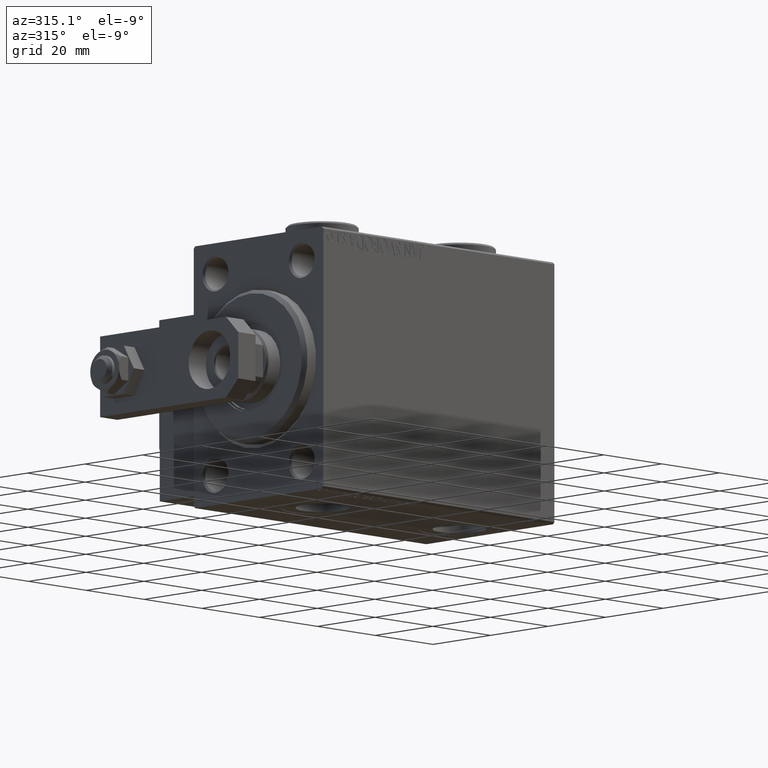
[diagram: clean part render]
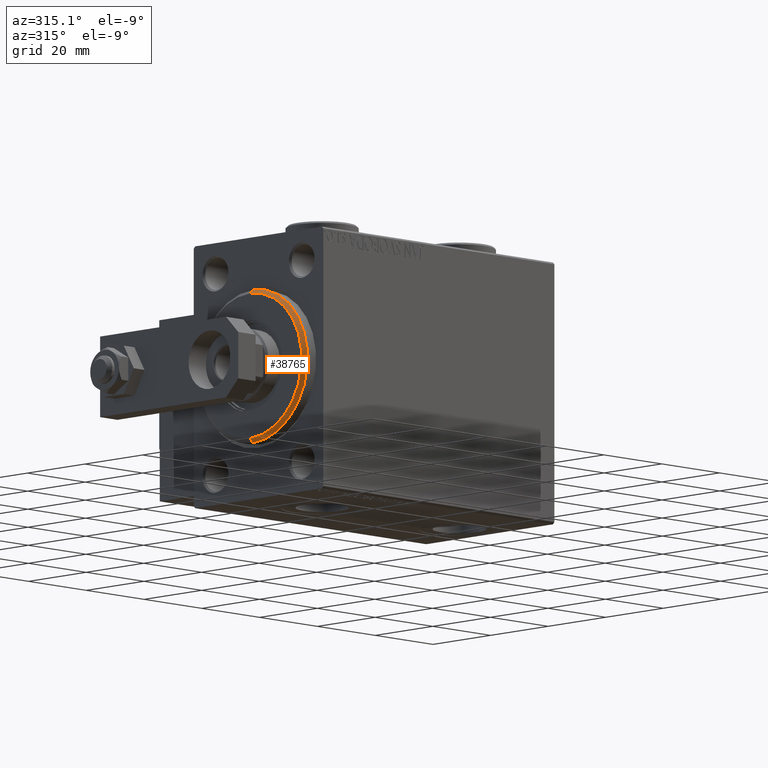
[diagram: same view with one face highlighted and labeled with its STEP entity id]
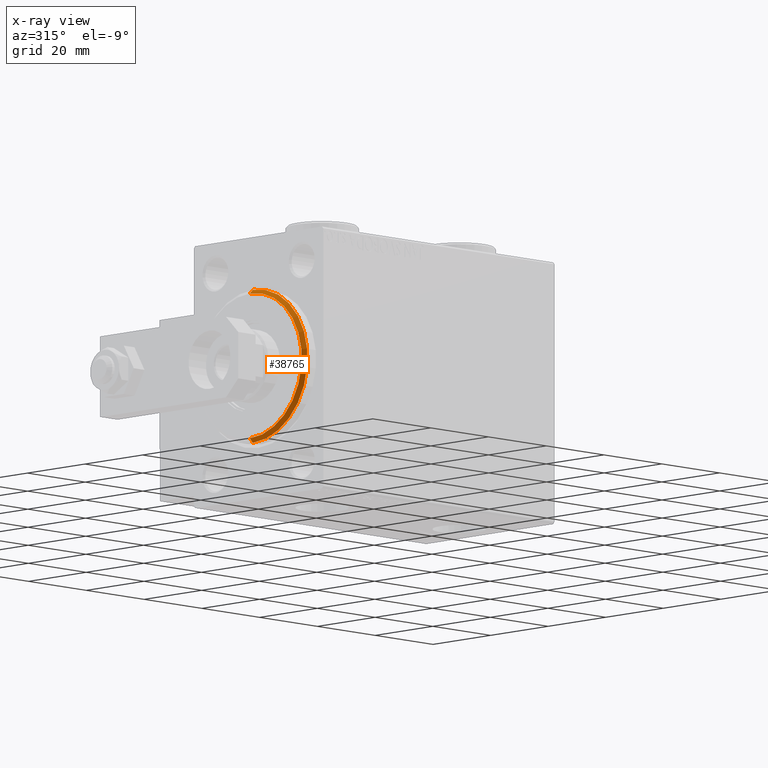
[diagram: x-ray of the same camera — body ghosted, the highlighted face saturated]
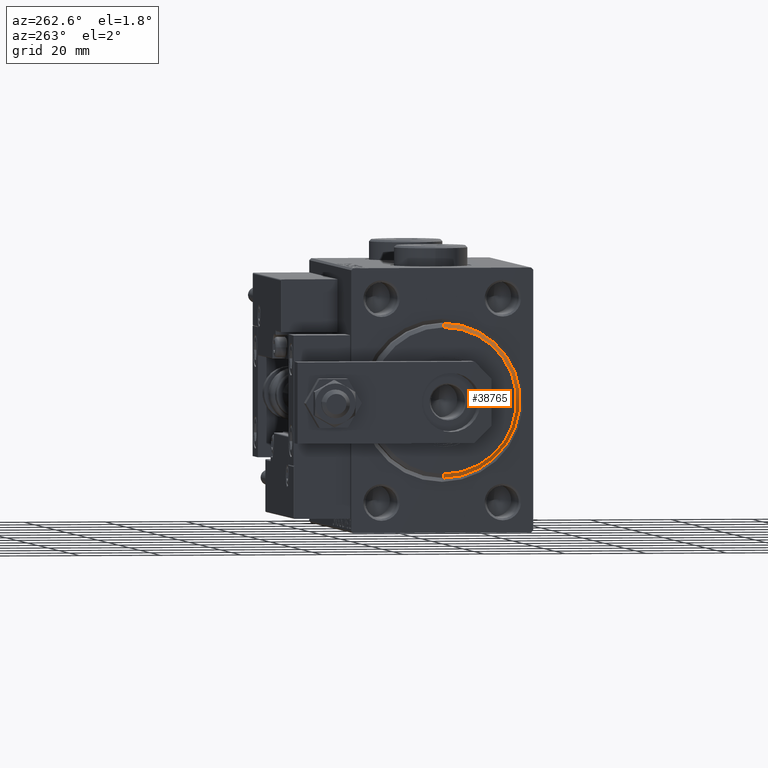
[diagram: same view with one face highlighted and labeled with its STEP entity id]
A machine part, auxiliary view. The second image highlights one B-rep face of the part: STEP entity #38765.
The next image is the same camera in x-ray: the body ghosted, the highlighted face saturated — about 0% of this face is hidden behind the body in this view.
A second angle (auxiliary view) of the same face is appended — the face is thin or edge-on in the first view.
In plain terms, the highlighted conical surface has half-angle 45 deg.
Its self-contained STEP definition (entity closure, byte-faithful):
#736 = CARTESIAN_POINT ( 'NONE',  ( 3.000000000000000000, 0.000000000000000000, 0.000000000000000000 ) ) ;
#1869 = EDGE_LOOP ( 'NONE', ( #42725, #47749, #11906, #15286 ) ) ;
#3214 = CARTESIAN_POINT ( 'NONE',  ( 3.000000000000000000, 0.000000000000000000, 17.99999999999999645 ) ) ;
#6780 = CARTESIAN_POINT ( 'NONE',  ( 1.999999999999992228, 2.326828918379970970E-15, -19.00000000000000000 ) ) ;
#7180 = FACE_OUTER_BOUND ( 'NONE', #1869, .T. ) ;
#10797 = LINE ( 'NONE', #27020, #50876 ) ;
#11358 = CARTESIAN_POINT ( 'NONE',  ( 3.000000000000000000, 2.265596578422603002E-15, -17.99999999999999645 ) ) ;
#11906 = ORIENTED_EDGE ( 'NONE', *, *, #43618, .F. ) ;
#12471 = CARTESIAN_POINT ( 'NONE',  ( 3.000000000000000000, 0.000000000000000000, 17.99999999999999645 ) ) ;
#15286 = ORIENTED_EDGE ( 'NONE', *, *, #22556, .F. ) ;
#16944 = DIRECTION ( 'NONE',  ( 0.000000000000000000, 0.000000000000000000, -1.000000000000000000 ) ) ;
#17779 = CONICAL_SURFACE ( 'NONE', #47477, 17.99999999999999645, 0.7853981633974466137 ) ;
#20286 = VECTOR ( 'NONE', #48109, 1000.000000000000000 ) ;
#21195 = CIRCLE ( 'NONE', #37386, 19.00000000000000000 ) ;
#21349 = CARTESIAN_POINT ( 'NONE',  ( 1.999999999999992228, 0.000000000000000000, 19.00000000000000000 ) ) ;
#21626 = DIRECTION ( 'NONE',  ( -1.000000000000000000, 0.000000000000000000, 0.000000000000000000 ) ) ;
#22556 = EDGE_CURVE ( 'NONE', #44354, #46443, #35379, .T. ) ;
#24379 = VERTEX_POINT ( 'NONE', #6780 ) ;
#27020 = CARTESIAN_POINT ( 'NONE',  ( 3.000000000000000000, 2.204364238465235033E-15, -17.99999999999999645 ) ) ;
#28381 = DIRECTION ( 'NONE',  ( -1.000000000000000000, 0.000000000000000000, 0.000000000000000000 ) ) ;
#31113 = DIRECTION ( 'NONE',  ( 0.000000000000000000, 0.000000000000000000, 1.000000000000000000 ) ) ;
#33396 = CIRCLE ( 'NONE', #49527, 17.99999999999999645 ) ;
#34958 = DIRECTION ( 'NONE',  ( 1.000000000000000000, -0.000000000000000000, 0.000000000000000000 ) ) ;
#35379 = LINE ( 'NONE', #3214, #20286 ) ;
#36893 = DIRECTION ( 'NONE',  ( 0.000000000000000000, 0.000000000000000000, -1.000000000000000000 ) ) ;
#37386 = AXIS2_PLACEMENT_3D ( 'NONE', #48585, #28381, #36893 ) ;
#38110 = CARTESIAN_POINT ( 'NONE',  ( 3.000000000000000000, 0.000000000000000000, 0.000000000000000000 ) ) ;
#38184 = VERTEX_POINT ( 'NONE', #11358 ) ;
#38765 = ADVANCED_FACE ( 'NONE', ( #7180 ), #17779, .T. ) ;
#41708 = EDGE_CURVE ( 'NONE', #38184, #24379, #10797, .T. ) ;
#42725 = ORIENTED_EDGE ( 'NONE', *, *, #51021, .F. ) ;
#43238 = DIRECTION ( 'NONE',  ( -0.7071067811865487940, 8.659560562354918067E-17, -0.7071067811865463515 ) ) ;
#43618 = EDGE_CURVE ( 'NONE', #46443, #24379, #21195, .T. ) ;
#44354 = VERTEX_POINT ( 'NONE', #12471 ) ;
#46443 = VERTEX_POINT ( 'NONE', #21349 ) ;
#47477 = AXIS2_PLACEMENT_3D ( 'NONE', #38110, #21626, #31113 ) ;
#47749 = ORIENTED_EDGE ( 'NONE', *, *, #41708, .T. ) ;
#48109 = DIRECTION ( 'NONE',  ( -0.7071067811865487940, 0.000000000000000000, 0.7071067811865463515 ) ) ;
#48585 = CARTESIAN_POINT ( 'NONE',  ( 1.999999999999992228, 0.000000000000000000, 0.000000000000000000 ) ) ;
#49527 = AXIS2_PLACEMENT_3D ( 'NONE', #736, #34958, #16944 ) ;
#50876 = VECTOR ( 'NONE', #43238, 1000.000000000000000 ) ;
#51021 = EDGE_CURVE ( 'NONE', #38184, #44354, #33396, .T. ) ;